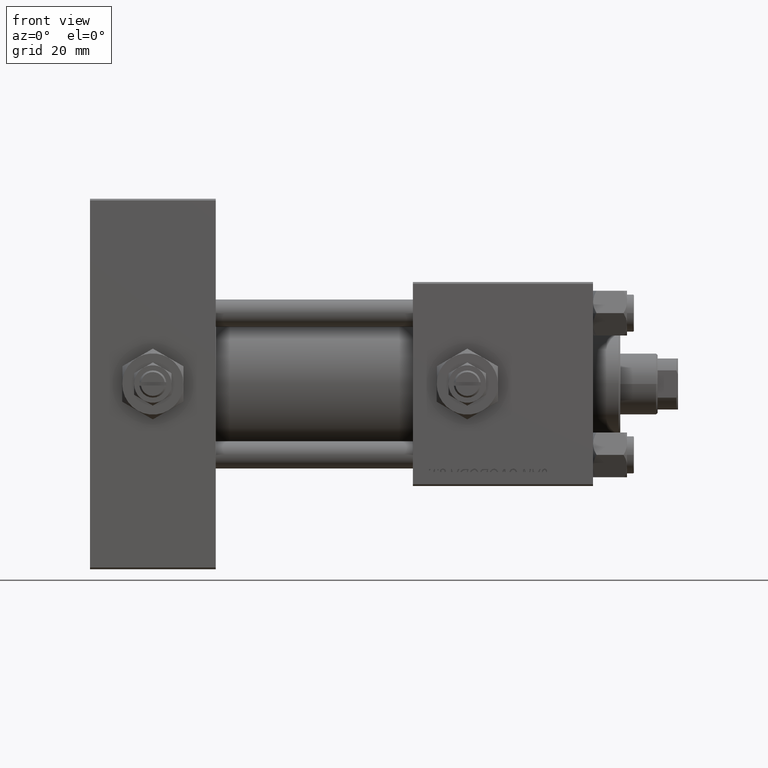
[diagram: clean part render]
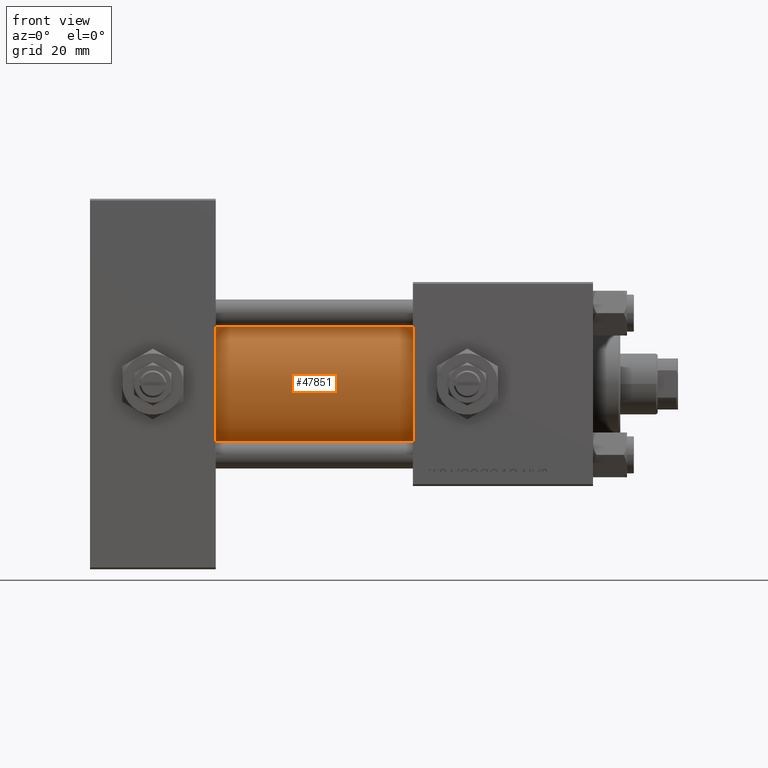
[diagram: same view with one face highlighted and labeled with its STEP entity id]
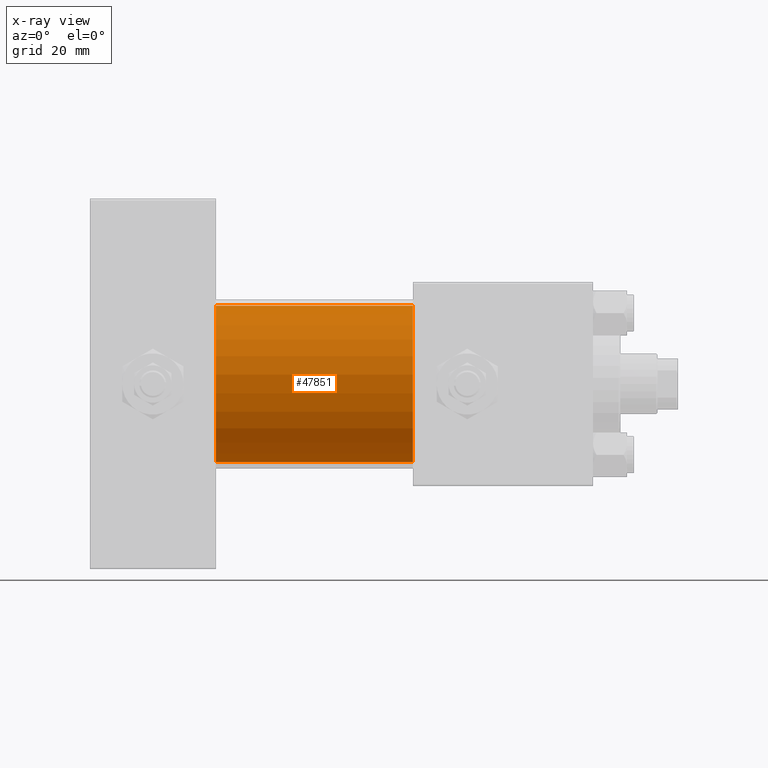
[diagram: x-ray of the same camera — body ghosted, the highlighted face saturated]
A machine part, front view. The second image highlights one B-rep face of the part: STEP entity #47851.
The next image is the same camera in x-ray: the body ghosted, the highlighted face saturated — about 1% of this face is hidden behind the body in this view.
In plain terms, the highlighted cylindrical surface (partial cylindrical patch) has radius 23 mm, axis along (-1, -0, -0).
Its self-contained STEP definition (entity closure, byte-faithful):
#2453 = EDGE_CURVE ( 'NONE', #10974, #16205, #52069, .T. ) ;
#2847 = DIRECTION ( 'NONE',  ( 0.000000000000000000, 0.000000000000000000, 1.000000000000000000 ) ) ;
#5031 = DIRECTION ( 'NONE',  ( 1.000000000000000000, -0.000000000000000000, 0.000000000000000000 ) ) ;
#6280 = CYLINDRICAL_SURFACE ( 'NONE', #7694, 23.00000000000000000 ) ;
#7694 = AXIS2_PLACEMENT_3D ( 'NONE', #22363, #45763, #2847 ) ;
#9641 = DIRECTION ( 'NONE',  ( -1.000000000000000000, -0.000000000000000000, -0.000000000000000000 ) ) ;
#10188 = EDGE_CURVE ( 'NONE', #16205, #40210, #31291, .T. ) ;
#10974 = VERTEX_POINT ( 'NONE', #41234 ) ;
#11063 = CARTESIAN_POINT ( 'NONE',  ( 95.00000000000000000, -2.602085213965210642E-15, 0.000000000000000000 ) ) ;
#12607 = VECTOR ( 'NONE', #19981, 1000.000000000000000 ) ;
#13569 = ORIENTED_EDGE ( 'NONE', *, *, #2453, .T. ) ;
#13715 = CARTESIAN_POINT ( 'NONE',  ( 37.00000000000000000, 2.146024240737012665E-16, -23.00000000000000000 ) ) ;
#14097 = LINE ( 'NONE', #44456, #40356 ) ;
#14461 = EDGE_LOOP ( 'NONE', ( #39562, #20424, #13569, #21184 ) ) ;
#16205 = VERTEX_POINT ( 'NONE', #24307 ) ;
#18669 = FACE_OUTER_BOUND ( 'NONE', #14461, .T. ) ;
#19981 = DIRECTION ( 'NONE',  ( -1.000000000000000000, -0.000000000000000000, -0.000000000000000000 ) ) ;
#20424 = ORIENTED_EDGE ( 'NONE', *, *, #23394, .F. ) ;
#21184 = ORIENTED_EDGE ( 'NONE', *, *, #10188, .T. ) ;
#22363 = CARTESIAN_POINT ( 'NONE',  ( 95.00000000000000000, -2.602085213965210642E-15, 0.000000000000000000 ) ) ;
#23394 = EDGE_CURVE ( 'NONE', #10974, #35573, #30824, .T. ) ;
#23697 = DIRECTION ( 'NONE',  ( 1.000000000000000000, 0.000000000000000000, 0.000000000000000000 ) ) ;
#24307 = CARTESIAN_POINT ( 'NONE',  ( 37.00000000000000000, -2.602085213965210642E-15, 23.00000000000000000 ) ) ;
#24442 = CARTESIAN_POINT ( 'NONE',  ( 95.00000000000000000, -2.602085213965210642E-15, 23.00000000000000000 ) ) ;
#25310 = CARTESIAN_POINT ( 'NONE',  ( 37.00000000000000000, -2.602085213965210642E-15, 0.000000000000000000 ) ) ;
#28168 = CARTESIAN_POINT ( 'NONE',  ( 95.00000000000000000, 2.146024240737012665E-16, -23.00000000000000000 ) ) ;
#30824 = CIRCLE ( 'NONE', #44266, 23.00000000000000000 ) ;
#31291 = CIRCLE ( 'NONE', #49058, 23.00000000000000000 ) ;
#35573 = VERTEX_POINT ( 'NONE', #28168 ) ;
#39506 = EDGE_CURVE ( 'NONE', #35573, #40210, #14097, .T. ) ;
#39562 = ORIENTED_EDGE ( 'NONE', *, *, #39506, .F. ) ;
#40210 = VERTEX_POINT ( 'NONE', #13715 ) ;
#40356 = VECTOR ( 'NONE', #9641, 1000.000000000000000 ) ;
#41092 = DIRECTION ( 'NONE',  ( 0.000000000000000000, 0.000000000000000000, 1.000000000000000000 ) ) ;
#41234 = CARTESIAN_POINT ( 'NONE',  ( 95.00000000000000000, -2.602085213965210642E-15, 23.00000000000000000 ) ) ;
#44266 = AXIS2_PLACEMENT_3D ( 'NONE', #11063, #23697, #47380 ) ;
#44456 = CARTESIAN_POINT ( 'NONE',  ( 95.00000000000000000, 2.146024240737012665E-16, -23.00000000000000000 ) ) ;
#45763 = DIRECTION ( 'NONE',  ( -1.000000000000000000, -0.000000000000000000, -0.000000000000000000 ) ) ;
#47380 = DIRECTION ( 'NONE',  ( 0.000000000000000000, 0.000000000000000000, -1.000000000000000000 ) ) ;
#47851 = ADVANCED_FACE ( 'NONE', ( #18669 ), #6280, .T. ) ;
#49058 = AXIS2_PLACEMENT_3D ( 'NONE', #25310, #5031, #41092 ) ;
#52069 = LINE ( 'NONE', #24442, #12607 ) ;